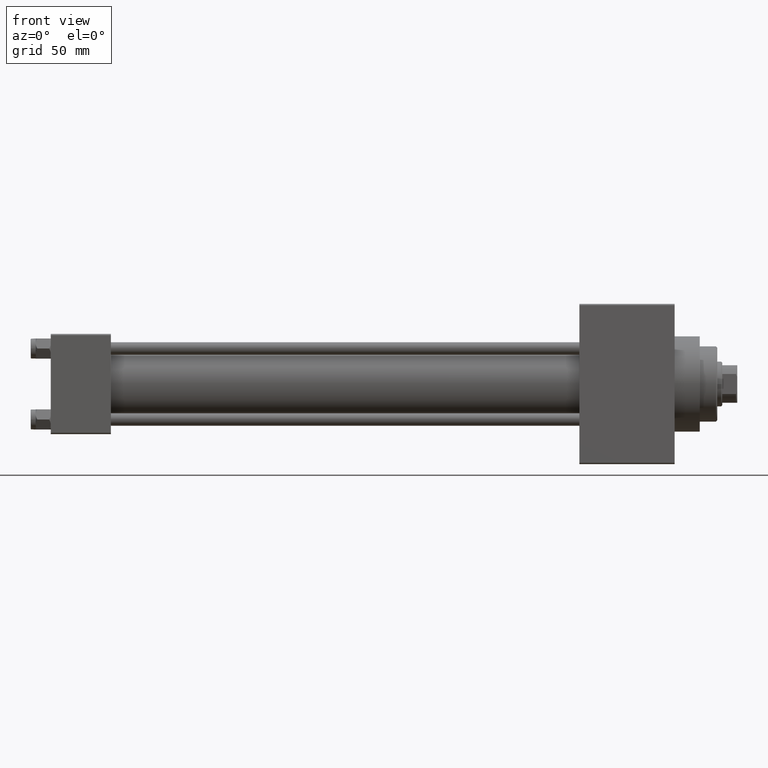
[diagram: clean part render]
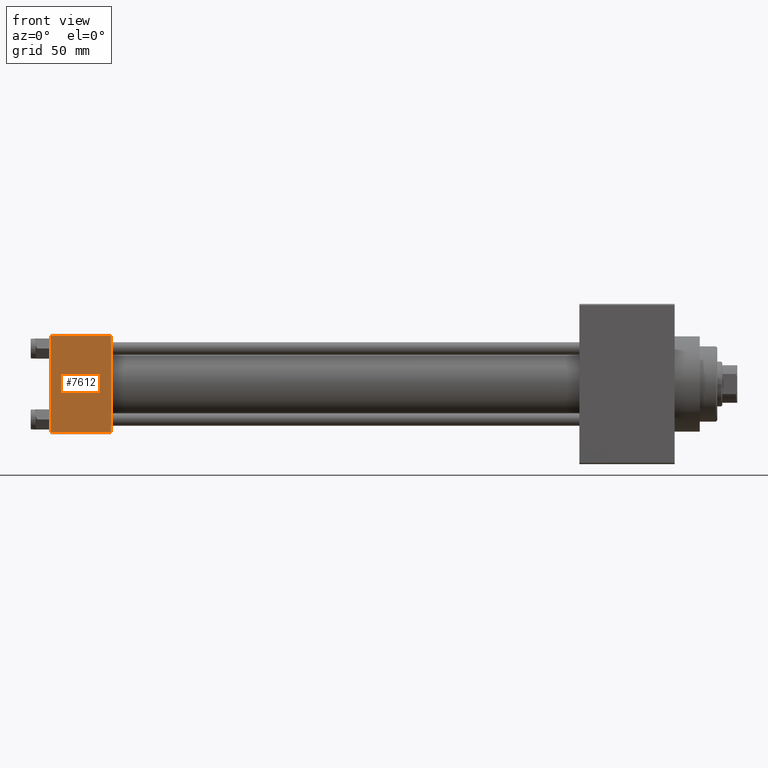
[diagram: same view with one face highlighted and labeled with its STEP entity id]
A machine part, front view. The second image highlights one B-rep face of the part: STEP entity #7612.
In plain terms, the highlighted planar face has unit normal (0, 1, 0).
Its self-contained STEP definition (entity closure, byte-faithful):
#1799 = VECTOR ( 'NONE', #41704, 1000.000000000000000 ) ;
#2294 = LINE ( 'NONE', #45405, #28162 ) ;
#5724 = CARTESIAN_POINT ( 'NONE',  ( 0.000000000000000000, -20.00000000000000355, 19.99999999999998934 ) ) ;
#6094 = FACE_OUTER_BOUND ( 'NONE', #24946, .T. ) ;
#7479 = ORIENTED_EDGE ( 'NONE', *, *, #15807, .T. ) ;
#7612 = ADVANCED_FACE ( 'NONE', ( #6094 ), #10840, .F. ) ;
#7771 = VECTOR ( 'NONE', #45724, 1000.000000000000000 ) ;
#8625 = VECTOR ( 'NONE', #46630, 1000.000000000000000 ) ;
#9552 = EDGE_CURVE ( 'NONE', #26409, #19539, #13536, .T. ) ;
#10840 = PLANE ( 'NONE',  #35133 ) ;
#13536 = LINE ( 'NONE', #45967, #7771 ) ;
#15807 = EDGE_CURVE ( 'NONE', #19539, #29648, #19537, .T. ) ;
#17476 = CARTESIAN_POINT ( 'NONE',  ( 0.000000000000000000, -20.00000000000000000, -19.49999999999999645 ) ) ;
#17784 = LINE ( 'NONE', #46394, #8625 ) ;
#19537 = LINE ( 'NONE', #5724, #1799 ) ;
#19539 = VERTEX_POINT ( 'NONE', #44891 ) ;
#23084 = EDGE_CURVE ( 'NONE', #29648, #40191, #2294, .T. ) ;
#24134 = ORIENTED_EDGE ( 'NONE', *, *, #23084, .T. ) ;
#24686 = DIRECTION ( 'NONE',  ( -0.000000000000000000, 1.000000000000000000, 8.673617379884036705E-17 ) ) ;
#24946 = EDGE_LOOP ( 'NONE', ( #7479, #24134, #33426, #26181 ) ) ;
#26181 = ORIENTED_EDGE ( 'NONE', *, *, #9552, .T. ) ;
#26409 = VERTEX_POINT ( 'NONE', #42707 ) ;
#28162 = VECTOR ( 'NONE', #41142, 1000.000000000000000 ) ;
#29648 = VERTEX_POINT ( 'NONE', #17476 ) ;
#30608 = EDGE_CURVE ( 'NONE', #26409, #40191, #17784, .T. ) ;
#32297 = DIRECTION ( 'NONE',  ( 0.000000000000000000, -8.673617379884036705E-17, 1.000000000000000000 ) ) ;
#33426 = ORIENTED_EDGE ( 'NONE', *, *, #30608, .F. ) ;
#35133 = AXIS2_PLACEMENT_3D ( 'NONE', #46120, #24686, #32297 ) ;
#39448 = CARTESIAN_POINT ( 'NONE',  ( 24.00000000000000000, -20.00000000000000000, -19.49999999999999645 ) ) ;
#40191 = VERTEX_POINT ( 'NONE', #39448 ) ;
#41142 = DIRECTION ( 'NONE',  ( 1.000000000000000000, 0.000000000000000000, 0.000000000000000000 ) ) ;
#41704 = DIRECTION ( 'NONE',  ( 0.000000000000000000, 8.673617379884036705E-17, -1.000000000000000000 ) ) ;
#42707 = CARTESIAN_POINT ( 'NONE',  ( 24.00000000000000000, -20.00000000000000355, 19.49999999999998224 ) ) ;
#44891 = CARTESIAN_POINT ( 'NONE',  ( 0.000000000000000000, -20.00000000000000355, 19.49999999999998224 ) ) ;
#45405 = CARTESIAN_POINT ( 'NONE',  ( 24.00000000000000000, -20.00000000000000000, -19.49999999999999645 ) ) ;
#45724 = DIRECTION ( 'NONE',  ( -1.000000000000000000, 0.000000000000000000, 0.000000000000000000 ) ) ;
#45967 = CARTESIAN_POINT ( 'NONE',  ( 24.00000000000000000, -20.00000000000000355, 19.49999999999998224 ) ) ;
#46120 = CARTESIAN_POINT ( 'NONE',  ( 24.00000000000000000, -20.00000000000000355, 19.99999999999998934 ) ) ;
#46394 = CARTESIAN_POINT ( 'NONE',  ( 24.00000000000000000, -20.00000000000000355, 19.99999999999998934 ) ) ;
#46630 = DIRECTION ( 'NONE',  ( 0.000000000000000000, 8.673617379884036705E-17, -1.000000000000000000 ) ) ;